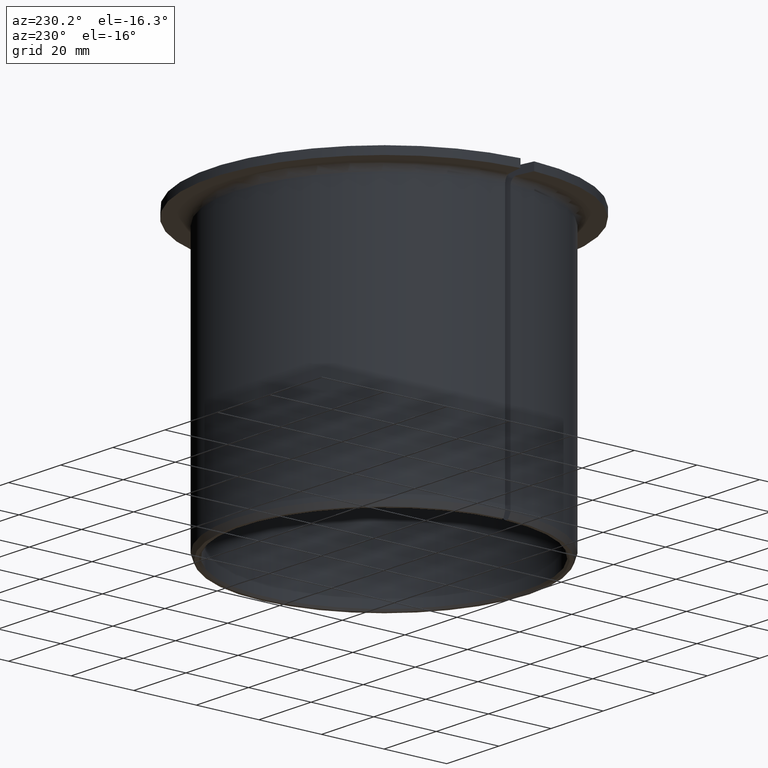
[diagram: clean part render]
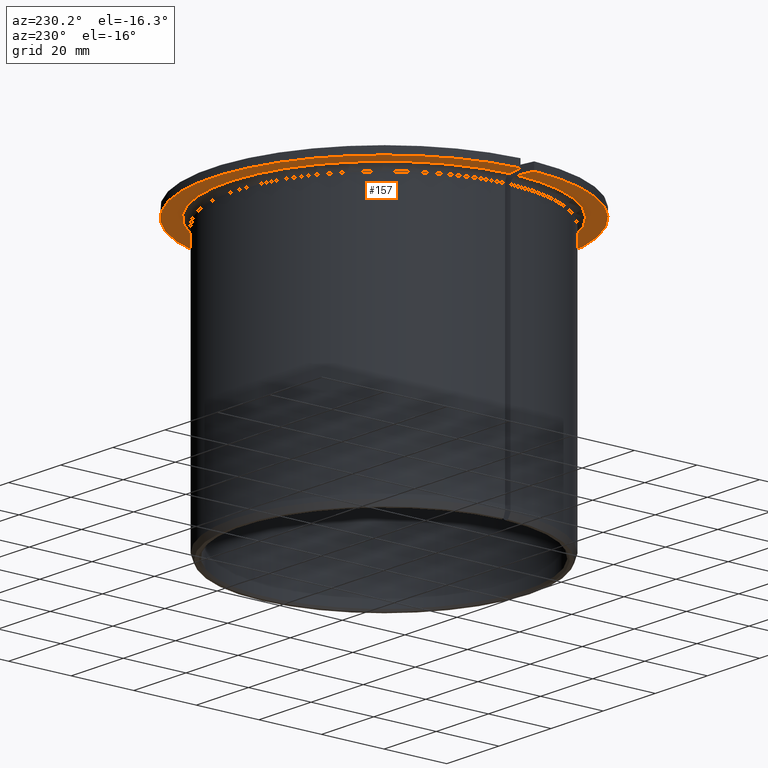
[diagram: same view with one face highlighted and labeled with its STEP entity id]
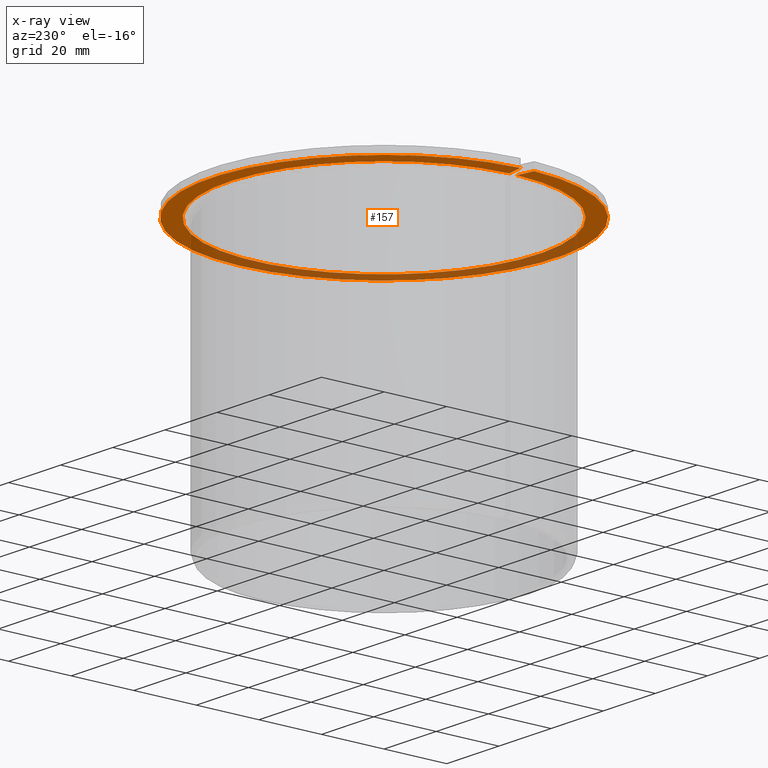
[diagram: x-ray of the same camera — body ghosted, the highlighted face saturated]
A machine part, auxiliary view. The second image highlights one B-rep face of the part: STEP entity #157.
The next image is the same camera in x-ray: the body ghosted, the highlighted face saturated — about 37% of this face is hidden behind the body in this view.
In plain terms, the highlighted planar face has unit normal (-0, 0, -1).
Its self-contained STEP definition (entity closure, byte-faithful):
#157=ADVANCED_FACE('',(#175),#176,.T.);
#175=FACE_OUTER_BOUND('',#200,.T.);
#176=PLANE('',#201);
#200=EDGE_LOOP('',(#250,#251,#252,#253));
#201=AXIS2_PLACEMENT_3D('',#254,#255,#256);
#250=ORIENTED_EDGE('',*,*,#331,.T.);
#251=ORIENTED_EDGE('',*,*,#332,.T.);
#252=ORIENTED_EDGE('',*,*,#328,.F.);
#253=ORIENTED_EDGE('',*,*,#315,.F.);
#254=CARTESIAN_POINT('',(0.0495,6.93889390390723E-018,0.0875));
#255=DIRECTION('',(0.0,-6.12323399573677E-017,-1.0));
#256=DIRECTION('',(0.0,1.0,-6.12323399573677E-017));
#315=EDGE_CURVE('',#347,#349,#350,.T.);
#328=EDGE_CURVE('',#349,#372,#373,.T.);
#331=EDGE_CURVE('',#347,#377,#378,.T.);
#332=EDGE_CURVE('',#377,#372,#379,.T.);
#347=VERTEX_POINT('',#415);
#349=VERTEX_POINT('',#418);
#350=LINE('',#419,#420);
#372=VERTEX_POINT('',#486);
#373=CIRCLE('',#487,0.0495);
#377=VERTEX_POINT('',#506);
#378=CIRCLE('',#507,0.055);
#379=LINE('',#508,#509);
#415=CARTESIAN_POINT('',(0.054956128321563,-0.0021963514982584,0.0875));
#418=CARTESIAN_POINT('',(0.0494846763526473,-0.00123158689248811,0.0875));
#419=CARTESIAN_POINT('',(0.0492889241727507,-0.00119707050163984,0.0875));
#420=VECTOR('',#532,1.0);
#486=CARTESIAN_POINT('',(0.0494846763526473,0.00123158689248812,0.0875));
#487=AXIS2_PLACEMENT_3D('',#548,#549,#550);
#506=CARTESIAN_POINT('',(0.054956128321563,0.00219635149825841,0.0875));
#507=AXIS2_PLACEMENT_3D('',#554,#555,#556);
#508=CARTESIAN_POINT('',(0.0492889241727507,0.00119707050163985,0.0875));
#509=VECTOR('',#557,1.0);
#532=DIRECTION('',(-0.984807753012208,0.173648177666931,-1.06328842478789E-017));
#548=CARTESIAN_POINT('',(0.0,6.93889390390723E-018,0.0875));
#549=DIRECTION('',(0.0,-6.12323399573677E-017,-1.0));
#550=DIRECTION('',(0.0,1.0,-6.12323399573677E-017));
#554=CARTESIAN_POINT('',(0.0,6.93889390390723E-018,0.0875));
#555=DIRECTION('',(0.0,-6.12323399573677E-017,-1.0));
#556=DIRECTION('',(0.0,1.0,-6.12323399573677E-017));
#557=DIRECTION('',(-0.984807753012208,-0.173648177666931,1.06328842478789E-017));